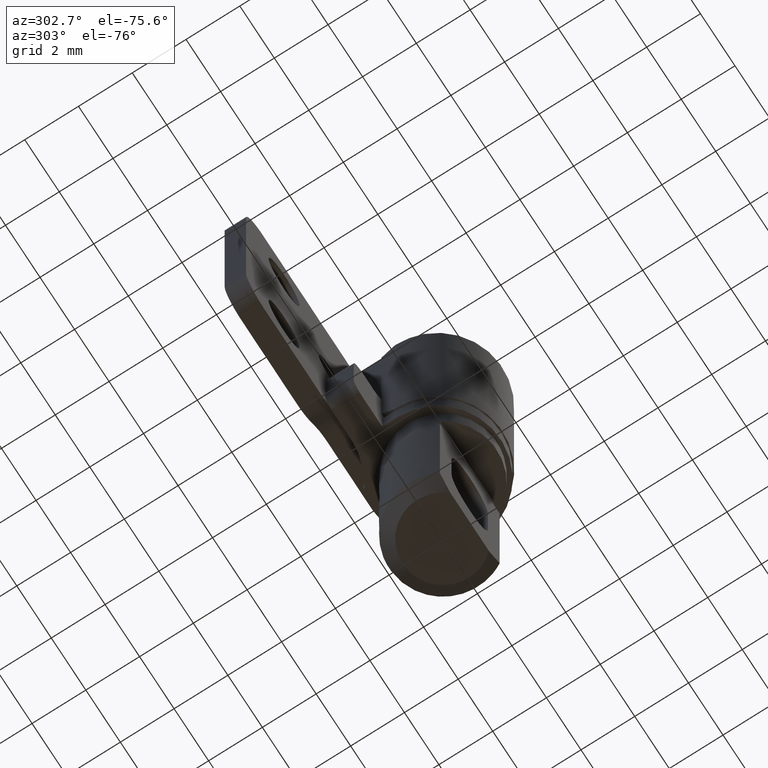
[diagram: clean part render]
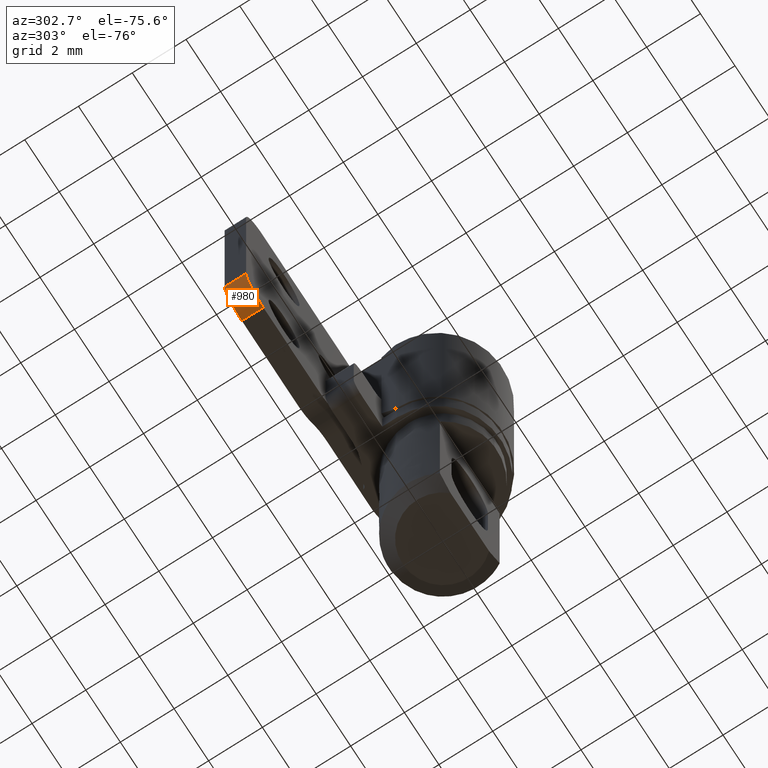
[diagram: same view with one face highlighted and labeled with its STEP entity id]
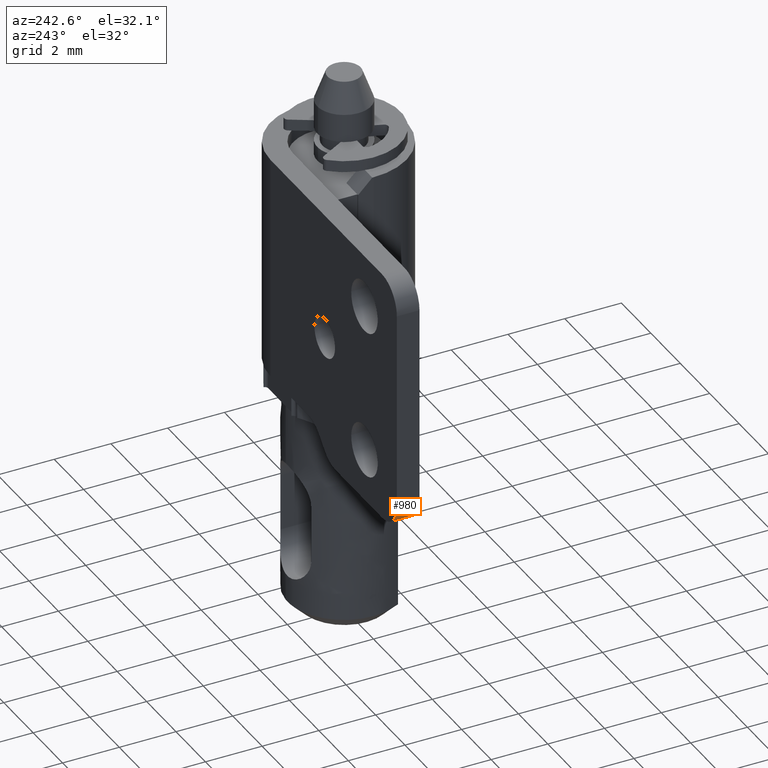
[diagram: same view with one face highlighted and labeled with its STEP entity id]
A machine part, auxiliary view. The second image highlights one B-rep face of the part: STEP entity #980.
A second angle (auxiliary view) of the same face is appended — the face is thin or edge-on in the first view.
In plain terms, the highlighted face is a freeform B-spline surface patch.
Its self-contained STEP definition (entity closure, byte-faithful):
#776=CARTESIAN_POINT('',(-7.599999999999910,1.800000000000000,7.999999999999499));
#777=VERTEX_POINT('',#776);
#850=CARTESIAN_POINT('',(-8.600000000000000,1.800000000000000,8.999999999999449));
#851=VERTEX_POINT('',#850);
#857=CARTESIAN_POINT('',(-7.599999999999910,1.800000000000000,7.999999999999501));
#858=CARTESIAN_POINT('',(-8.599999999999909,1.800000000000001,7.999999999999502));
#859=CARTESIAN_POINT('',(-8.599999999999909,1.800000000000000,8.999999999999499));
#867=(BOUNDED_CURVE()B_SPLINE_CURVE(2,(#857,#858,#859),.UNSPECIFIED.,.F.,.U.)CURVE()GEOMETRIC_REPRESENTATION_ITEM()QUASI_UNIFORM_CURVE()RATIONAL_B_SPLINE_CURVE((1.0,0.707106781186548,1.0))REPRESENTATION_ITEM(''));
#868=EDGE_CURVE('',#777,#851,#867,.T.);
#936=CARTESIAN_POINT('',(-8.599657324975468,1.780000000000000,9.026176948307324));
#937=CARTESIAN_POINT('',(-8.599657324975468,2.620500000000001,9.026176948307324));
#938=CARTESIAN_POINT('',(-8.627728665264712,1.780000000000000,7.954175712256563));
#939=CARTESIAN_POINT('',(-8.627728665264712,2.620500000000001,7.954175712256563));
#940=CARTESIAN_POINT('',(-7.556380612634528,1.780000000000000,8.000951778417647));
#941=CARTESIAN_POINT('',(-7.556380612634528,2.620500000000001,8.000951778417647));
#949=(BOUNDED_SURFACE()B_SPLINE_SURFACE(1,2,((#936,#938,#940),(#937,#939,#941)),.UNSPECIFIED.,.F.,.F.,.U.)GEOMETRIC_REPRESENTATION_ITEM()QUASI_UNIFORM_SURFACE()RATIONAL_B_SPLINE_SURFACE(((1.0,0.681998360062498,1.0),(1.0,0.681998360062498,1.0)))REPRESENTATION_ITEM('')SURFACE());
#950=CARTESIAN_POINT('',(-8.600000000000000,2.600000000000000,8.999999999999449));
#951=VERTEX_POINT('',#950);
#952=CARTESIAN_POINT('',(-7.599999999999910,2.600000000000000,7.999999999999499));
#953=VERTEX_POINT('',#952);
#954=CARTESIAN_POINT('',(-8.600000000000000,2.600000000000000,8.999999999999449));
#955=CARTESIAN_POINT('',(-8.599999999999909,2.600000000000001,7.999999999999502));
#956=CARTESIAN_POINT('',(-7.599999999999910,2.600000000000000,7.999999999999501));
#964=(BOUNDED_CURVE()B_SPLINE_CURVE(2,(#954,#955,#956),.UNSPECIFIED.,.F.,.U.)CURVE()GEOMETRIC_REPRESENTATION_ITEM()QUASI_UNIFORM_CURVE()RATIONAL_B_SPLINE_CURVE((1.0,0.707106781186548,1.0))REPRESENTATION_ITEM(''));
#965=EDGE_CURVE('',#951,#953,#964,.T.);
#966=ORIENTED_EDGE('',*,*,#965,.T.);
#967=CARTESIAN_POINT('',(-7.599999999999910,2.600000000000000,7.999999999999499));
#968=CARTESIAN_POINT('',(-7.599999999999910,1.800000000000000,7.999999999999499));
#969=QUASI_UNIFORM_CURVE('',1,(#967,#968),.UNSPECIFIED.,.F.,.U.);
#970=EDGE_CURVE('',#953,#777,#969,.T.);
#971=ORIENTED_EDGE('',*,*,#970,.T.);
#972=ORIENTED_EDGE('',*,*,#868,.T.);
#973=CARTESIAN_POINT('',(-8.600000000000000,1.800000000000000,8.999999999999449));
#974=CARTESIAN_POINT('',(-8.600000000000000,2.600000000000000,8.999999999999449));
#975=QUASI_UNIFORM_CURVE('',1,(#973,#974),.UNSPECIFIED.,.F.,.U.);
#976=EDGE_CURVE('',#851,#951,#975,.T.);
#977=ORIENTED_EDGE('',*,*,#976,.T.);
#978=EDGE_LOOP('',(#966,#971,#972,#977));
#979=FACE_OUTER_BOUND('',#978,.T.);
#980=ADVANCED_FACE('',(#979),#949,.T.);